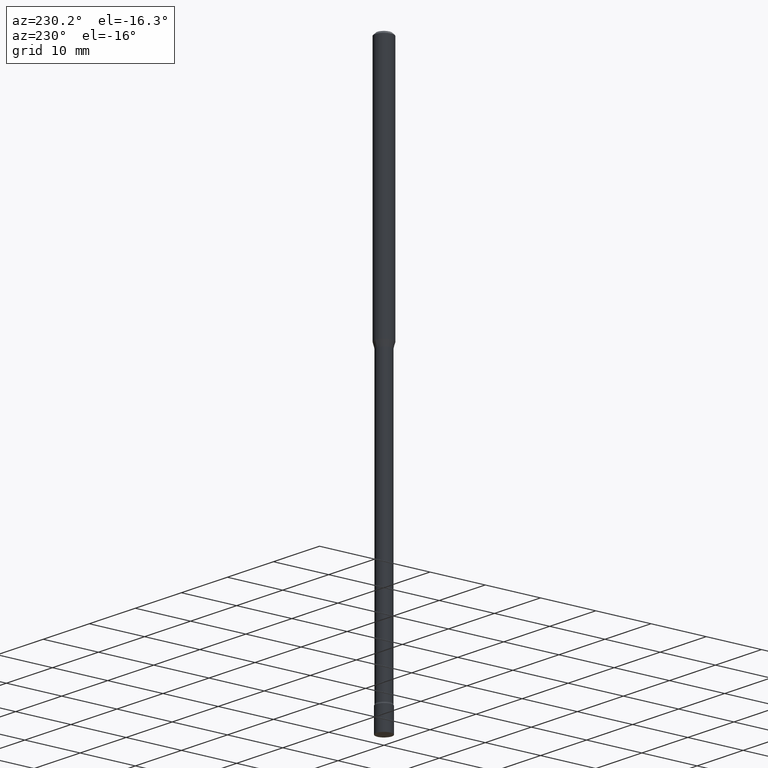
[diagram: clean part render]
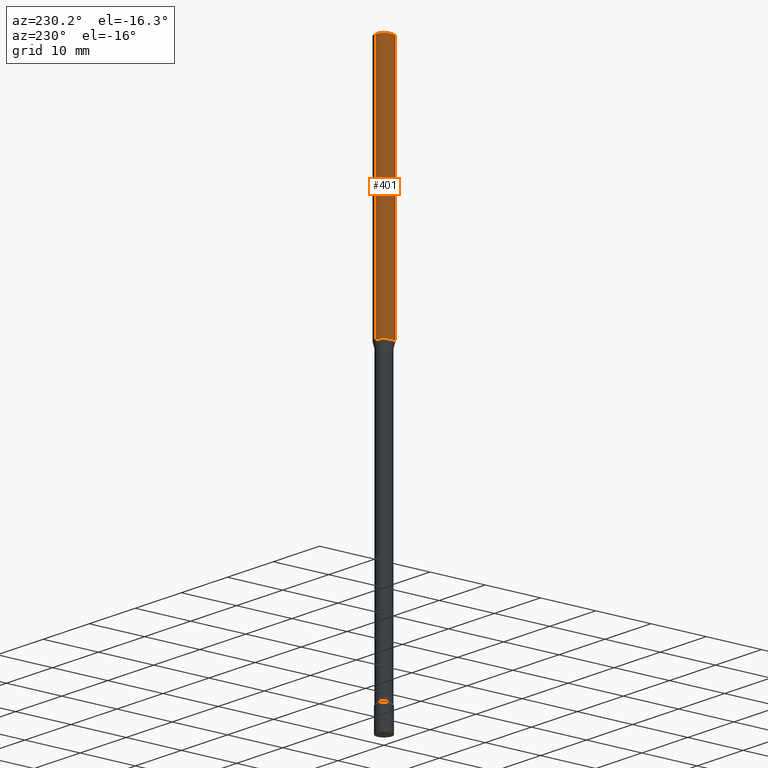
[diagram: same view with one face highlighted and labeled with its STEP entity id]
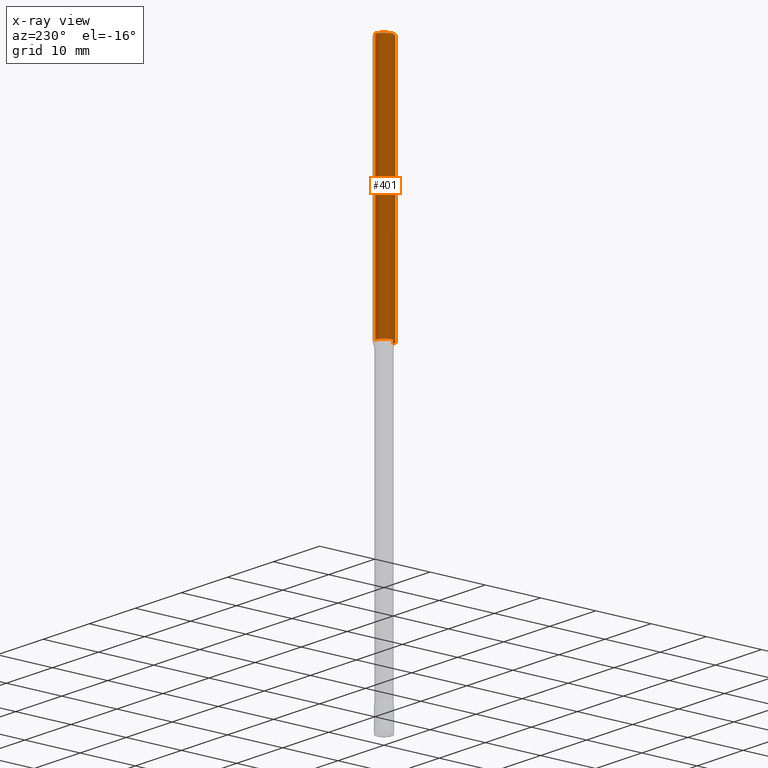
[diagram: x-ray of the same camera — body ghosted, the highlighted face saturated]
A machine part, auxiliary view. The second image highlights one B-rep face of the part: STEP entity #401.
The next image is the same camera in x-ray: the body ghosted, the highlighted face saturated — about 0% of this face is hidden behind the body in this view.
In plain terms, the highlighted cylindrical surface (edge-blend (fillet) strip) has radius 1.5875 mm, axis along (-0, 0, 1).
Its self-contained STEP definition (entity closure, byte-faithful):
#3 = AXIS2_PLACEMENT_3D ( 'NONE', #303, #100, #264 ) ;
#6 = CARTESIAN_POINT ( 'NONE',  ( -4.364351673553484300E-16, -0.06250000000000610623, -1.759693851278255616 ) ) ;
#15 = DIRECTION ( 'NONE',  ( -2.445416266167608014E-29, 3.491556579138637754E-15, 1.000000000000000000 ) ) ;
#27 = EDGE_CURVE ( 'NONE', #348, #296, #460, .T. ) ;
#38 = ORIENTED_EDGE ( 'NONE', *, *, #338, .T. ) ;
#58 = VECTOR ( 'NONE', #473, 39.37007874015748143 ) ;
#69 = CARTESIAN_POINT ( 'NONE',  ( 4.440892098501057077E-16, 0.06249999999999388683, -1.759693851278256060 ) ) ;
#100 = DIRECTION ( 'NONE',  ( -2.445416266167608295E-29, 3.491556579138638148E-15, 1.000000000000000000 ) ) ;
#111 = AXIS2_PLACEMENT_3D ( 'NONE', #297, #134, #293 ) ;
#132 = ORIENTED_EDGE ( 'NONE', *, *, #156, .T. ) ;
#134 = DIRECTION ( 'NONE',  ( -2.445416266167608295E-29, 3.491556579138638148E-15, 1.000000000000000000 ) ) ;
#156 = EDGE_CURVE ( 'NONE', #457, #188, #162, .T. ) ;
#162 = CIRCLE ( 'NONE', #111, 0.06250000000000000000 ) ;
#178 = CARTESIAN_POINT ( 'NONE',  ( 3.668124399251419553E-31, -5.237334868707967970E-17, -0.01500000000000003067 ) ) ;
#188 = VERTEX_POINT ( 'NONE', #6 ) ;
#222 = EDGE_LOOP ( 'NONE', ( #262, #132, #38, #432 ) ) ;
#262 = ORIENTED_EDGE ( 'NONE', *, *, #365, .F. ) ;
#264 = DIRECTION ( 'NONE',  ( -6.982962677686265922E-15, -1.000000000000000000, 3.491556579138638148E-15 ) ) ;
#293 = DIRECTION ( 'NONE',  ( -6.982962677686265922E-15, -1.000000000000000000, 4.370956789862821150E-15 ) ) ;
#296 = VERTEX_POINT ( 'NONE', #507 ) ;
#297 = CARTESIAN_POINT ( 'NONE',  ( 4.303183967390971376E-29, -6.144070643700402488E-15, -1.759693851278255838 ) ) ;
#303 = CARTESIAN_POINT ( 'NONE',  ( 0.000000000000000000, 0.000000000000000000, 0.000000000000000000 ) ) ;
#305 = CARTESIAN_POINT ( 'NONE',  ( -4.364351673553916201E-16, -0.06250000000000000000, 2.182222861961648843E-16 ) ) ;
#312 = LINE ( 'NONE', #420, #58 ) ;
#338 = EDGE_CURVE ( 'NONE', #188, #296, #350, .T. ) ;
#348 = VERTEX_POINT ( 'NONE', #509 ) ;
#350 = LINE ( 'NONE', #305, #461 ) ;
#351 = CYLINDRICAL_SURFACE ( 'NONE', #3, 0.06250000000000000000 ) ;
#365 = EDGE_CURVE ( 'NONE', #457, #348, #312, .T. ) ;
#379 = AXIS2_PLACEMENT_3D ( 'NONE', #178, #388, #476 ) ;
#385 = FACE_OUTER_BOUND ( 'NONE', #222, .T. ) ;
#388 = DIRECTION ( 'NONE',  ( -2.445416266167608295E-29, 3.491556579138638148E-15, 1.000000000000000000 ) ) ;
#401 = ADVANCED_FACE ( 'NONE', ( #385 ), #351, .T. ) ;
#420 = CARTESIAN_POINT ( 'NONE',  ( 4.440892098500625669E-16, 0.06250000000000000000, -2.182222861961648843E-16 ) ) ;
#432 = ORIENTED_EDGE ( 'NONE', *, *, #27, .F. ) ;
#457 = VERTEX_POINT ( 'NONE', #69 ) ;
#460 = CIRCLE ( 'NONE', #379, 0.06250000000000000000 ) ;
#461 = VECTOR ( 'NONE', #15, 39.37007874015748143 ) ;
#473 = DIRECTION ( 'NONE',  ( -2.445416266167608014E-29, 3.491556579138637754E-15, 1.000000000000000000 ) ) ;
#476 = DIRECTION ( 'NONE',  ( -6.982962677686265922E-15, -1.000000000000000000, 3.483106191921935554E-15 ) ) ;
#507 = CARTESIAN_POINT ( 'NONE',  ( -4.364351673553912750E-16, -0.06250000000000005551, -0.01499999999999981209 ) ) ;
#509 = CARTESIAN_POINT ( 'NONE',  ( 4.440892098501059049E-16, 0.06249999999999995837, -0.01500000000000024751 ) ) ;